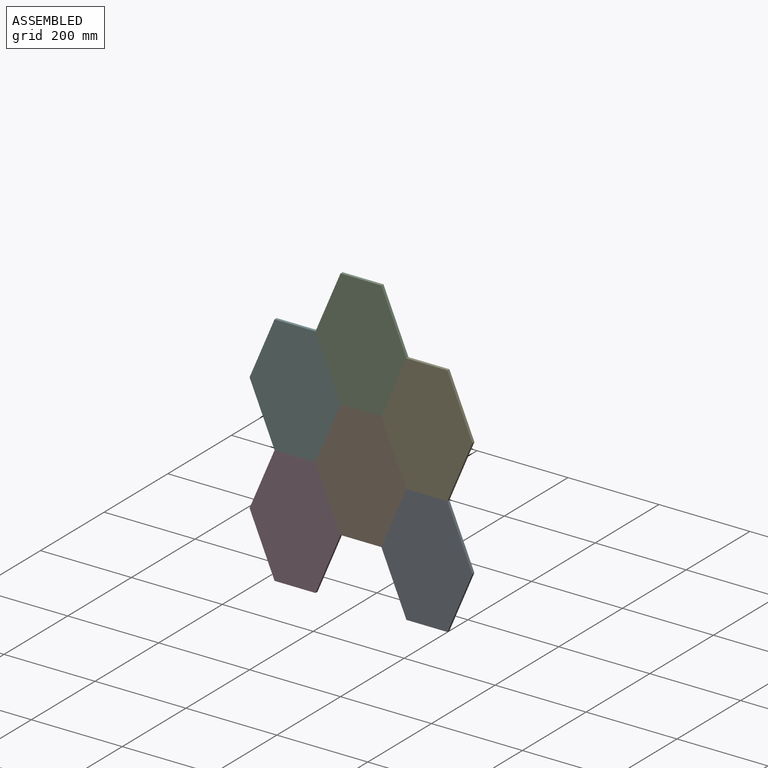
[diagram: assembled view]
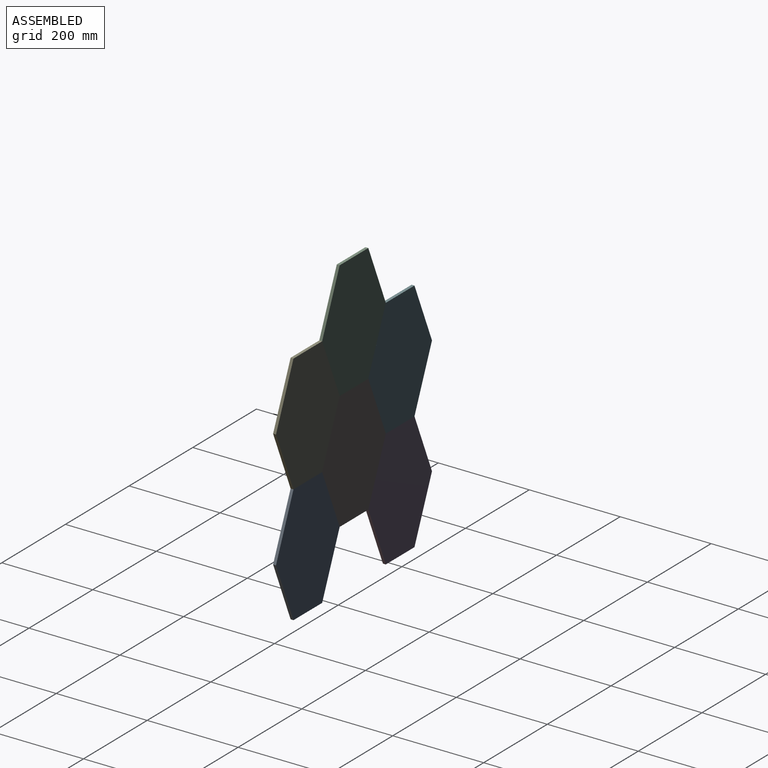
[diagram: assembled view, second angle]
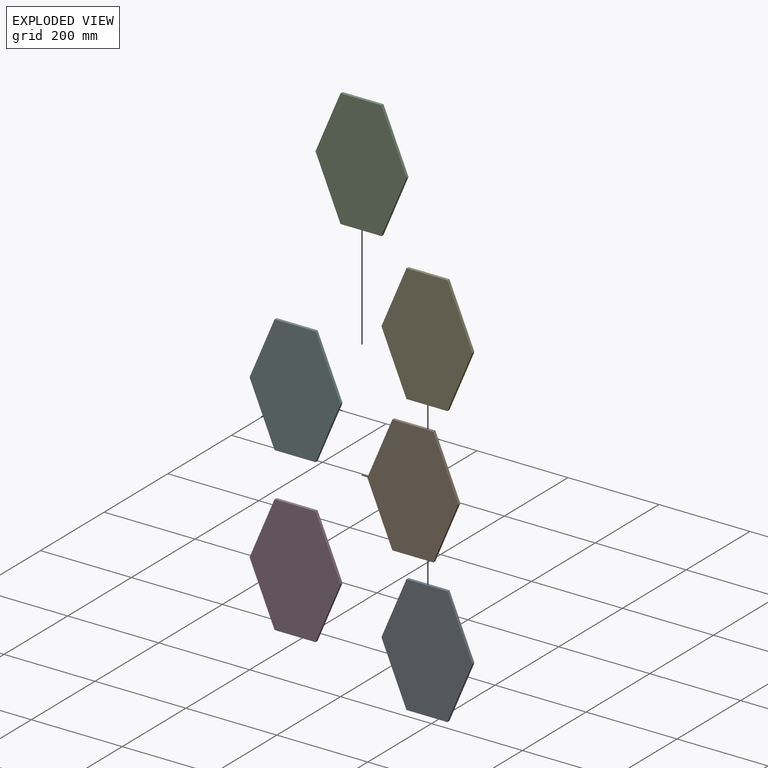
[diagram: exploded view]
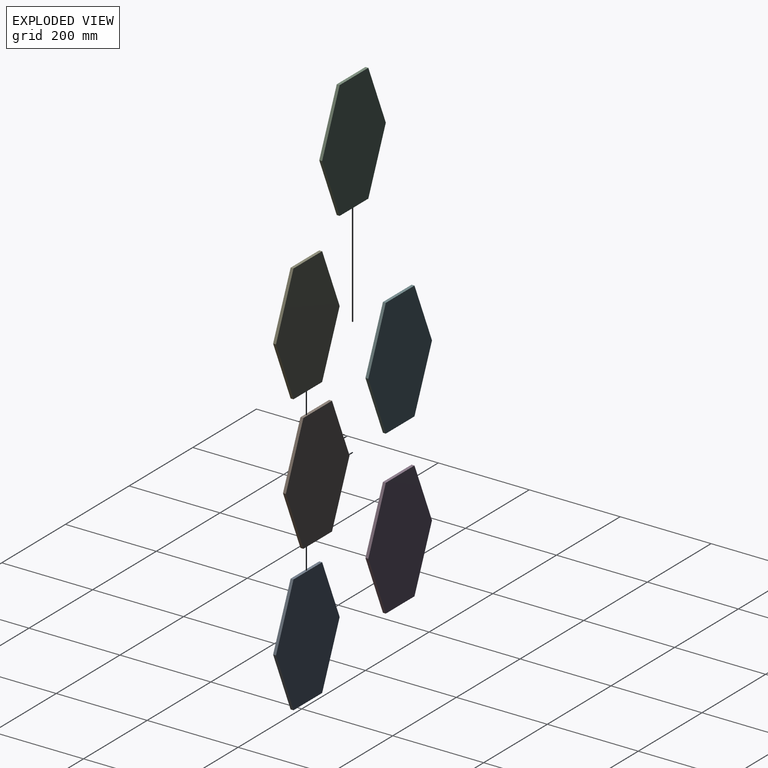
[diagram: exploded view, second angle]
ASSEMBLY  parts=6 mates=5
PART A: 8 faces, bbox 200x6.4x260 mm
  f0: plane 90x6.35mm, normal (0,0,-1), area 571.5mm2, adj f1,f5,f6,f7
  f1: plane 130x55mm, normal (0.92,0,-0.39), area 896.3mm2, adj f0,f2,f6,f7
  f2: plane 130x55mm, normal (0.92,0,0.39), area 896.3mm2, adj f1,f3,f6,f7
  f3: plane 90x6.35mm, normal (0,0,1), area 571.5mm2, adj f2,f4,f6,f7
  f4: plane 130x55mm, normal (-0.92,0,0.39), area 896.3mm2, adj f3,f5,f6,f7
  f5: plane 130x55mm, normal (-0.92,0,-0.39), area 896.3mm2, adj f0,f4,f6,f7
  f6: plane 260x200mm, normal (0,1,0), area 37700mm2, adj f0,f1,f2,f3,f4,f5
  f7: plane 260x200mm, normal (0,-1,0), area 37700mm2, adj f0,f1,f2,f3,f4,f5
PART B: same geometry as A
PART C: same geometry as A
PART D: same geometry as A
PART E: same geometry as A
PART F: same geometry as A
PLACE A t=(145,0,-130)mm
PLACE B at identity
PLACE C t=(0,0,260)mm
PLACE D t=(-145,0,-130)mm
PLACE E t=(145,0,130)mm
PLACE F t=(-145,0,130)mm
MATE fastened F.f6 <-> D.f6  axis (0,1,0) through (-55,6.35,130)mm
MATE fastened A.f6 <-> B.f6  axis (0,1,0) through (90,6.35,0)mm
MATE fastened D.f6 <-> B.f6  axis (0,1,0) through (0,6.35,0)mm
MATE fastened E.f6 <-> A.f6  axis (0,1,0) through (145,6.35,130)mm
MATE fastened C.f6 <-> E.f6  axis (0,1,0) through (90,6.35,260)mm
